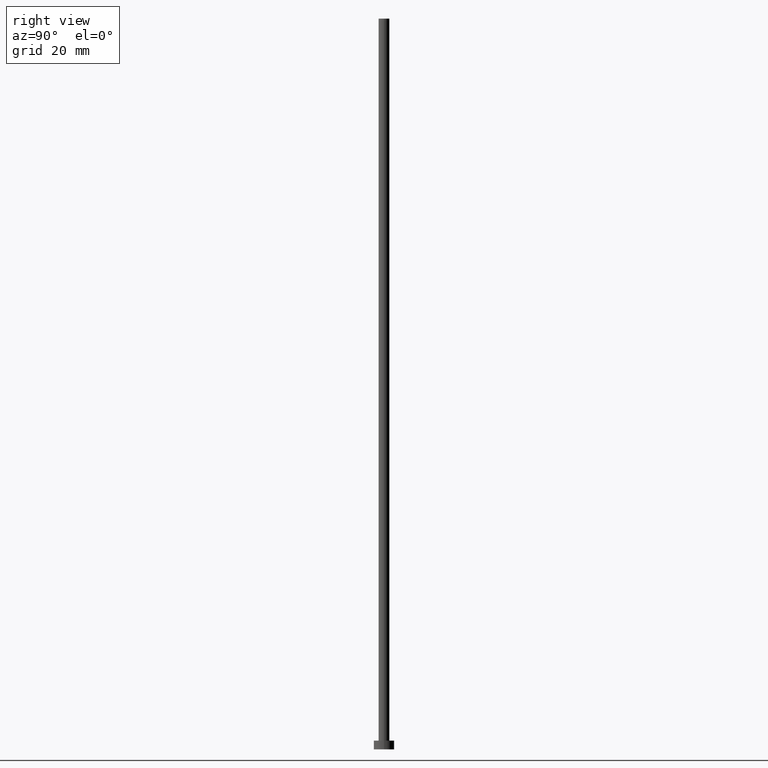
[diagram: clean part render]
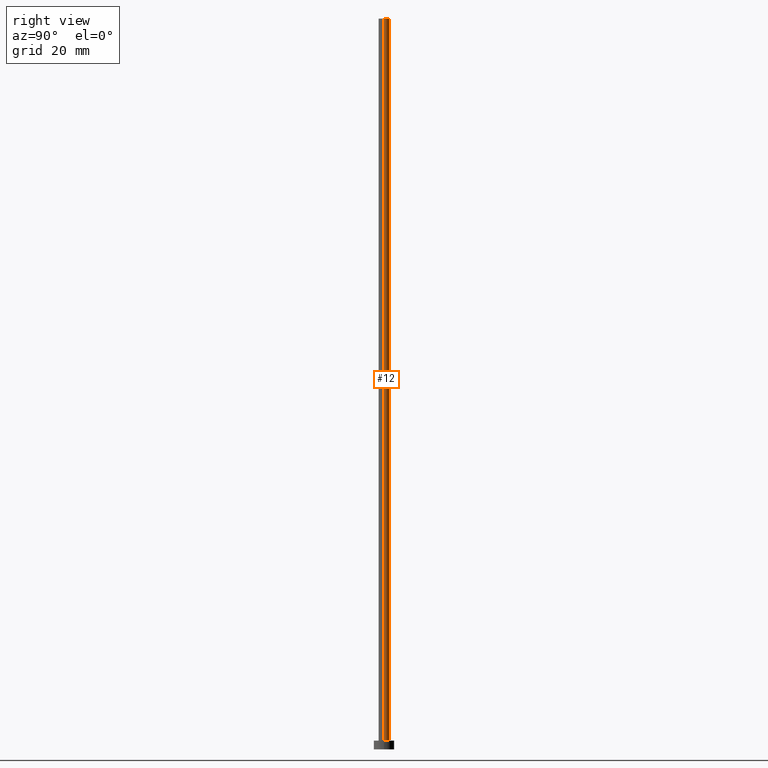
[diagram: same view with one face highlighted and labeled with its STEP entity id]
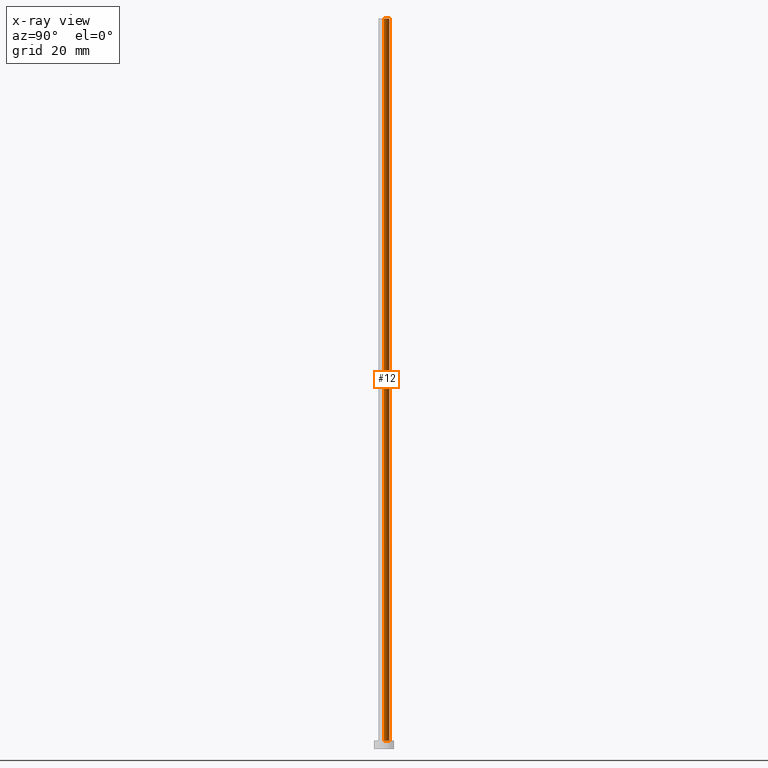
[diagram: x-ray of the same camera — body ghosted, the highlighted face saturated]
A machine part, right view. The second image highlights one B-rep face of the part: STEP entity #12.
The next image is the same camera in x-ray: the body ghosted, the highlighted face saturated — about 0% of this face is hidden behind the body in this view.
In plain terms, the highlighted cylindrical surface (edge-blend (fillet) strip) has radius 1.85 mm, axis along (-0, -0, -1).
Its self-contained STEP definition (entity closure, byte-faithful):
#2 = CARTESIAN_POINT ( 'NONE',  ( 0.000000000000000000, 0.000000000000000000, 250.0000000000000000 ) ) ;
#7 = CIRCLE ( 'NONE', #152, 1.850000000000000089 ) ;
#8 = VERTEX_POINT ( 'NONE', #42 ) ;
#12 = ADVANCED_FACE ( 'NONE', ( #124 ), #182, .T. ) ;
#17 = VECTOR ( 'NONE', #87, 1000.000000000000000 ) ;
#19 = CARTESIAN_POINT ( 'NONE',  ( -1.850000000000000089, 0.000000000000000000, 250.0000000000000000 ) ) ;
#20 = DIRECTION ( 'NONE',  ( 1.000000000000000000, 0.000000000000000000, 0.000000000000000000 ) ) ;
#25 = DIRECTION ( 'NONE',  ( -1.000000000000000000, 0.000000000000000000, 0.000000000000000000 ) ) ;
#28 = ORIENTED_EDGE ( 'NONE', *, *, #146, .T. ) ;
#38 = DIRECTION ( 'NONE',  ( 0.000000000000000000, 0.000000000000000000, 1.000000000000000000 ) ) ;
#42 = CARTESIAN_POINT ( 'NONE',  ( 1.850000000000000089, 2.265596578422603100E-16, 250.0000000000000000 ) ) ;
#43 = CIRCLE ( 'NONE', #142, 1.850000000000000089 ) ;
#61 = AXIS2_PLACEMENT_3D ( 'NONE', #120, #141, #25 ) ;
#64 = EDGE_CURVE ( 'NONE', #8, #236, #7, .T. ) ;
#68 = EDGE_LOOP ( 'NONE', ( #224, #28, #122, #140 ) ) ;
#69 = CARTESIAN_POINT ( 'NONE',  ( -1.850000000000000089, 0.000000000000000000, 3.000000000000000000 ) ) ;
#87 = DIRECTION ( 'NONE',  ( -0.000000000000000000, -0.000000000000000000, -1.000000000000000000 ) ) ;
#107 = DIRECTION ( 'NONE',  ( 1.000000000000000000, 0.000000000000000000, 0.000000000000000000 ) ) ;
#120 = CARTESIAN_POINT ( 'NONE',  ( 0.000000000000000000, 0.000000000000000000, 250.0000000000000000 ) ) ;
#122 = ORIENTED_EDGE ( 'NONE', *, *, #244, .T. ) ;
#124 = FACE_OUTER_BOUND ( 'NONE', #68, .T. ) ;
#126 = EDGE_CURVE ( 'NONE', #236, #221, #174, .T. ) ;
#140 = ORIENTED_EDGE ( 'NONE', *, *, #126, .F. ) ;
#141 = DIRECTION ( 'NONE',  ( -0.000000000000000000, -0.000000000000000000, -1.000000000000000000 ) ) ;
#142 = AXIS2_PLACEMENT_3D ( 'NONE', #186, #164, #107 ) ;
#146 = EDGE_CURVE ( 'NONE', #8, #203, #223, .T. ) ;
#149 = CARTESIAN_POINT ( 'NONE',  ( 1.850000000000000089, 2.265596578422603100E-16, 3.000000000000000000 ) ) ;
#152 = AXIS2_PLACEMENT_3D ( 'NONE', #2, #38, #20 ) ;
#164 = DIRECTION ( 'NONE',  ( 0.000000000000000000, 0.000000000000000000, 1.000000000000000000 ) ) ;
#174 = LINE ( 'NONE', #19, #200 ) ;
#182 = CYLINDRICAL_SURFACE ( 'NONE', #61, 1.850000000000000089 ) ;
#186 = CARTESIAN_POINT ( 'NONE',  ( 0.000000000000000000, 0.000000000000000000, 3.000000000000000000 ) ) ;
#200 = VECTOR ( 'NONE', #252, 1000.000000000000000 ) ;
#203 = VERTEX_POINT ( 'NONE', #149 ) ;
#206 = CARTESIAN_POINT ( 'NONE',  ( -1.850000000000000089, 0.000000000000000000, 250.0000000000000000 ) ) ;
#221 = VERTEX_POINT ( 'NONE', #69 ) ;
#223 = LINE ( 'NONE', #249, #17 ) ;
#224 = ORIENTED_EDGE ( 'NONE', *, *, #64, .F. ) ;
#236 = VERTEX_POINT ( 'NONE', #206 ) ;
#244 = EDGE_CURVE ( 'NONE', #203, #221, #43, .T. ) ;
#249 = CARTESIAN_POINT ( 'NONE',  ( 1.850000000000000089, 2.265596578422603100E-16, 250.0000000000000000 ) ) ;
#252 = DIRECTION ( 'NONE',  ( -0.000000000000000000, -0.000000000000000000, -1.000000000000000000 ) ) ;